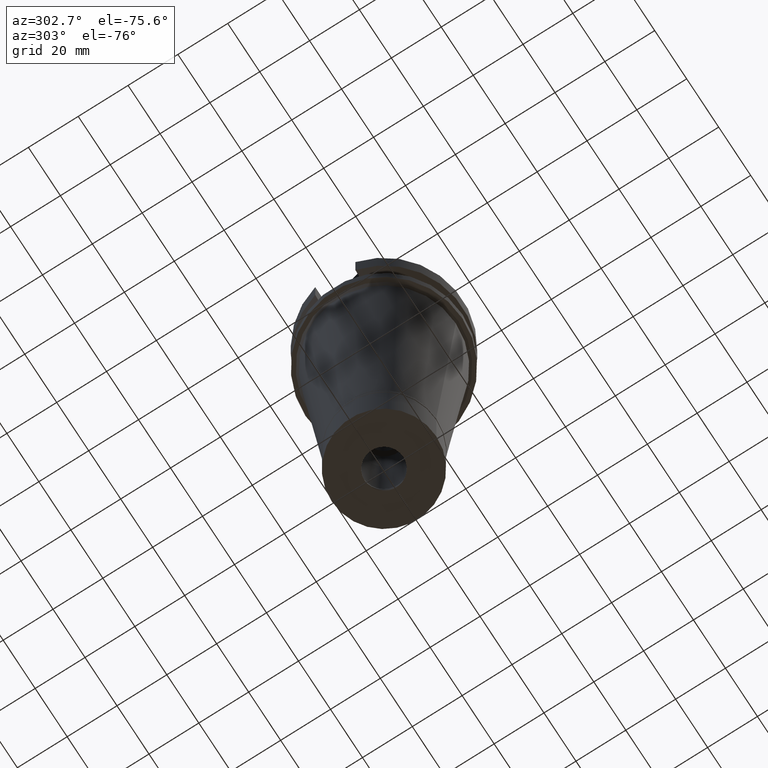
[diagram: clean part render]
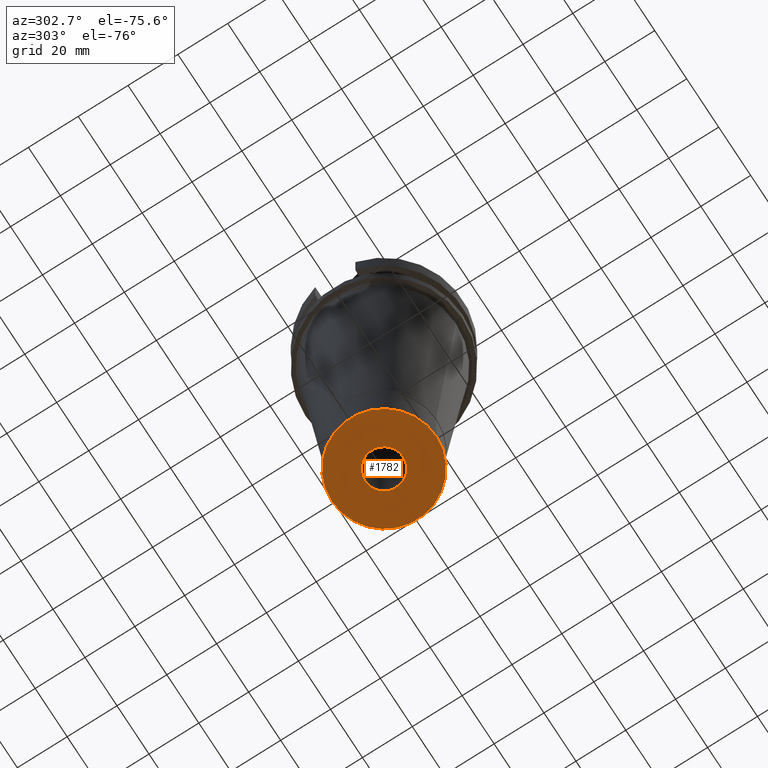
[diagram: same view with one face highlighted and labeled with its STEP entity id]
A machine part, auxiliary view. The second image highlights one B-rep face of the part: STEP entity #1782.
In plain terms, the highlighted planar face has unit normal (0, 0, -1).
Its self-contained STEP definition (entity closure, byte-faithful):
#20 = EDGE_CURVE ( 'NONE', #1704, #1578, #2783, .T. ) ;
#134 = EDGE_CURVE ( 'NONE', #1578, #1704, #2835, .T. ) ;
#151 = DIRECTION ( 'NONE',  ( 0.0000000000000000000, 1.000000000000000000, 0.0000000000000000000 ) ) ;
#323 = EDGE_CURVE ( 'NONE', #2932, #2435, #352, .T. ) ;
#352 = CIRCLE ( 'NONE', #664, 21.00000000000000000 ) ;
#394 = DIRECTION ( 'NONE',  ( 0.0000000000000000000, 0.0000000000000000000, -1.000000000000000000 ) ) ;
#506 = AXIS2_PLACEMENT_3D ( 'NONE', #1272, #2990, #2263 ) ;
#592 = PLANE ( 'NONE',  #2399 ) ;
#624 = DIRECTION ( 'NONE',  ( 0.0000000000000000000, 0.0000000000000000000, 1.000000000000000000 ) ) ;
#664 = AXIS2_PLACEMENT_3D ( 'NONE', #2365, #624, #1591 ) ;
#790 = CARTESIAN_POINT ( 'NONE',  ( 0.0000000000000000000, 7.700000000000000178, -24.29999999999999716 ) ) ;
#832 = FACE_BOUND ( 'NONE', #1793, .T. ) ;
#866 = CIRCLE ( 'NONE', #1266, 21.00000000000000000 ) ;
#1049 = DIRECTION ( 'NONE',  ( 0.0000000000000000000, -1.000000000000000000, 0.0000000000000000000 ) ) ;
#1073 = EDGE_CURVE ( 'NONE', #2435, #2932, #866, .T. ) ;
#1100 = CARTESIAN_POINT ( 'NONE',  ( 0.0000000000000000000, -21.00000000000000000, -24.29999999999999716 ) ) ;
#1266 = AXIS2_PLACEMENT_3D ( 'NONE', #3017, #2237, #1049 ) ;
#1272 = CARTESIAN_POINT ( 'NONE',  ( 0.0000000000000000000, 0.0000000000000000000, -24.29999999999999716 ) ) ;
#1326 = CARTESIAN_POINT ( 'NONE',  ( 0.0000000000000000000, 0.0000000000000000000, -24.29999999999999716 ) ) ;
#1476 = EDGE_LOOP ( 'NONE', ( #2870, #3095 ) ) ;
#1578 = VERTEX_POINT ( 'NONE', #1689 ) ;
#1591 = DIRECTION ( 'NONE',  ( 0.0000000000000000000, 1.000000000000000000, 0.0000000000000000000 ) ) ;
#1689 = CARTESIAN_POINT ( 'NONE',  ( 0.0000000000000000000, -7.700000000000000178, -24.29999999999999716 ) ) ;
#1704 = VERTEX_POINT ( 'NONE', #790 ) ;
#1764 = FACE_OUTER_BOUND ( 'NONE', #1476, .T. ) ;
#1782 = ADVANCED_FACE ( 'NONE', ( #1764, #832 ), #592, .T. ) ;
#1793 = EDGE_LOOP ( 'NONE', ( #2024, #2396 ) ) ;
#2024 = ORIENTED_EDGE ( 'NONE', *, *, #20, .F. ) ;
#2025 = AXIS2_PLACEMENT_3D ( 'NONE', #1326, #394, #151 ) ;
#2087 = CARTESIAN_POINT ( 'NONE',  ( 0.0000000000000000000, 21.00000000000000000, -24.29999999999999716 ) ) ;
#2220 = CARTESIAN_POINT ( 'NONE',  ( 0.0000000000000000000, 0.0000000000000000000, -24.29999999999999716 ) ) ;
#2237 = DIRECTION ( 'NONE',  ( 0.0000000000000000000, 0.0000000000000000000, 1.000000000000000000 ) ) ;
#2263 = DIRECTION ( 'NONE',  ( 0.0000000000000000000, -1.000000000000000000, 0.0000000000000000000 ) ) ;
#2365 = CARTESIAN_POINT ( 'NONE',  ( 0.0000000000000000000, 0.0000000000000000000, -24.29999999999999716 ) ) ;
#2396 = ORIENTED_EDGE ( 'NONE', *, *, #134, .F. ) ;
#2399 = AXIS2_PLACEMENT_3D ( 'NONE', #2220, #2500, #2992 ) ;
#2435 = VERTEX_POINT ( 'NONE', #1100 ) ;
#2500 = DIRECTION ( 'NONE',  ( 0.0000000000000000000, 0.0000000000000000000, -1.000000000000000000 ) ) ;
#2783 = CIRCLE ( 'NONE', #2025, 7.700000000000000178 ) ;
#2835 = CIRCLE ( 'NONE', #506, 7.700000000000000178 ) ;
#2870 = ORIENTED_EDGE ( 'NONE', *, *, #323, .F. ) ;
#2932 = VERTEX_POINT ( 'NONE', #2087 ) ;
#2990 = DIRECTION ( 'NONE',  ( 0.0000000000000000000, 0.0000000000000000000, -1.000000000000000000 ) ) ;
#2992 = DIRECTION ( 'NONE',  ( 0.0000000000000000000, -1.000000000000000000, 0.0000000000000000000 ) ) ;
#3017 = CARTESIAN_POINT ( 'NONE',  ( 0.0000000000000000000, 0.0000000000000000000, -24.29999999999999716 ) ) ;
#3095 = ORIENTED_EDGE ( 'NONE', *, *, #1073, .F. ) ;